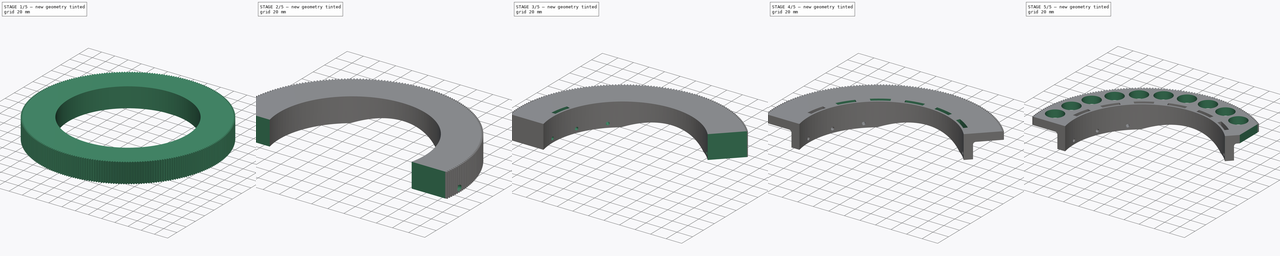
[diagram: build sequence overview — one tinted view per stage of 5, left to right]
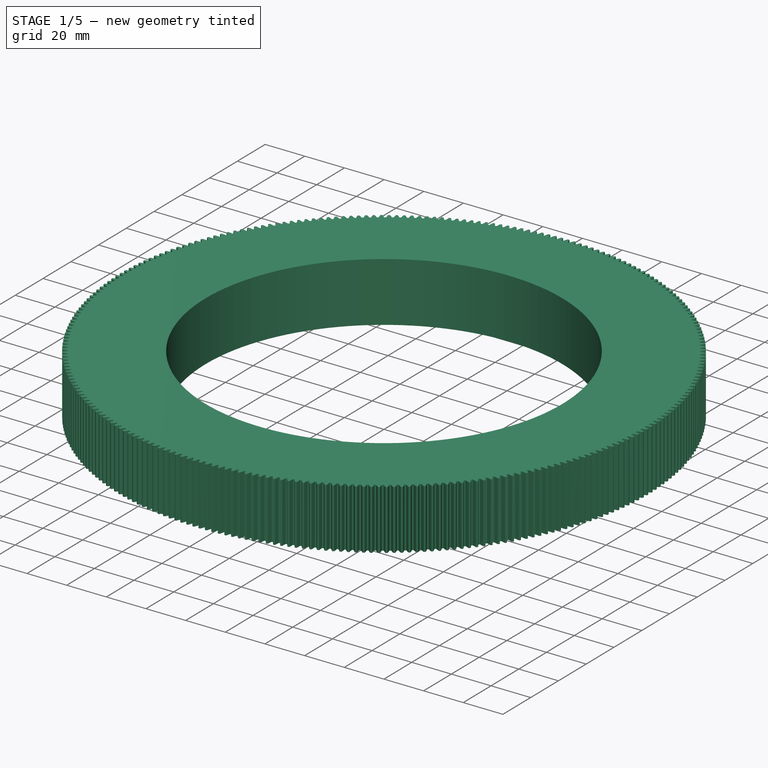
[diagram: stage 1 of 5 — iso view after this stage's code; geometry added in this stage tinted green]
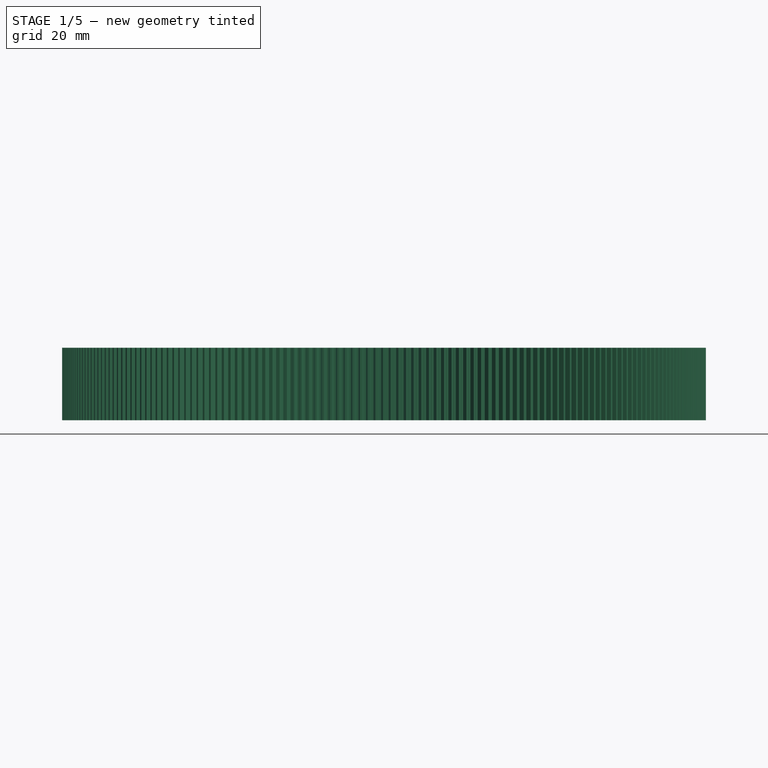
[diagram: stage 1 of 5 — front view after this stage's code; geometry added in this stage tinted green]
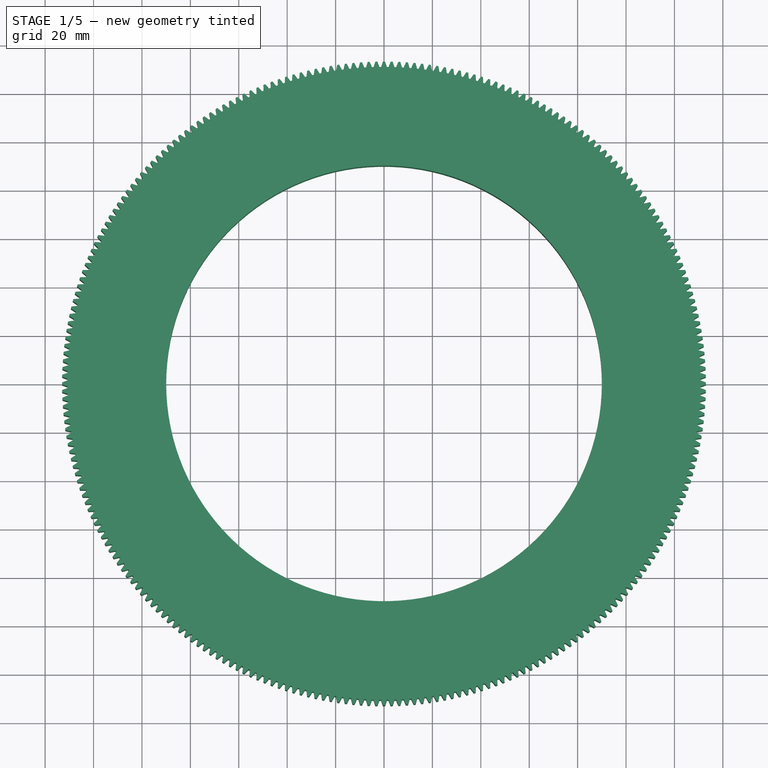
[diagram: stage 1 of 5 — top view after this stage's code; geometry added in this stage tinted green]
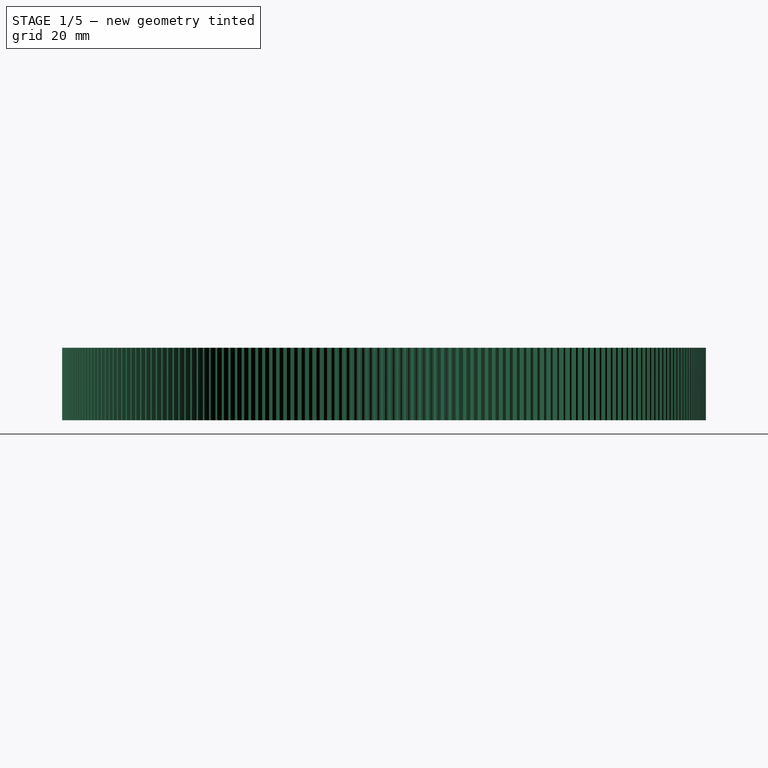
[diagram: stage 1 of 5 — right view after this stage's code; geometry added in this stage tinted green]
FCSTD DOCUMENT  (FreeCAD 2020.10.16R22739 +2665 (Git))
Label: wieniec-rury-mod1high
License: All rights reserved
objects: Sketcher::SketchObject×9, PartDesign::Pocket×8, PartDesign::PolarPattern×3, Part::FeaturePython×1, PartDesign::FeatureBase×1, PartDesign::Plane×1, PartDesign::Groove×1, PartDesign::Mirrored×1, PartDesign::MultiTransform×1, PartDesign::Fillet×1, PartDesign::Body×1
note: 54 computed .brp shape members not serialized (recipe doc carries the construction recipe); baked Part::Feature solids carry a one-line shape summary decoded from their .brp

FEATURE [Part::FeaturePython] involutegear  # WARN: FeaturePython — macro-defined, semantics opaque (R4)
  backlash = 0
  beta = 0
  clearance = 0.25
  double_helix = false
  dw = 264
  head = 0
  height = 30
  module = 1
  numpoints = 6
  pressure_angle = 20
  properties_from_tool = true
  reversed_backlash = false
  shift = 0
  simple = false
  teeth = 264
  transverse_pitch = 3.14159
  undercut = false
FEATURE [PartDesign::FeatureBase] BaseFeature
  BaseFeature = -> involutegear
  NewSolid = false
  Suppress = false
FEATURE [Sketcher::SketchObject] Sketch
  MapMode = 5
  Placement = pos=(0,0,30) rot=(0,0,1;0rad)
  Support = -> [BaseFeature]
  sketch-geometry (1):
    g0: Circle CenterX=0 CenterY=0 CenterZ=0 NormalX=0 NormalY=0 NormalZ=1 AngleXU=0 Radius=90
  constraints (2):
    c: Coincident(g0,g-1)
    c: Diameter(g0) = 180
FEATURE [PartDesign::Pocket] Pocket
  BaseFeature = -> BaseFeature
  ClaimChildren = false
  Length = 5
  Length2 = 100
  NewSolid = false
  Profile = -> Sketch
  Suppress = false
  Type = 1
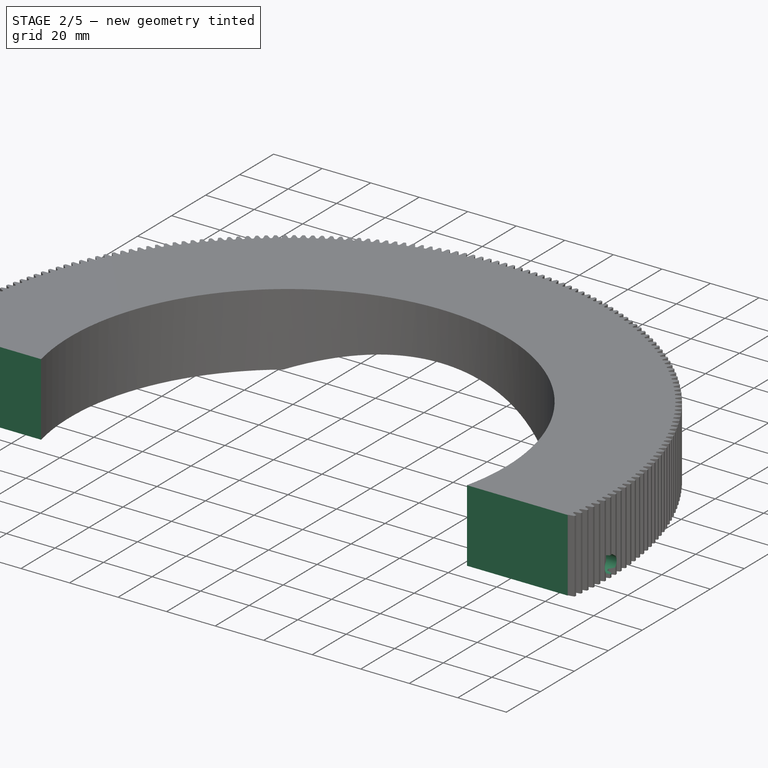
[diagram: stage 2 of 5 — iso view after this stage's code; geometry added in this stage tinted green]
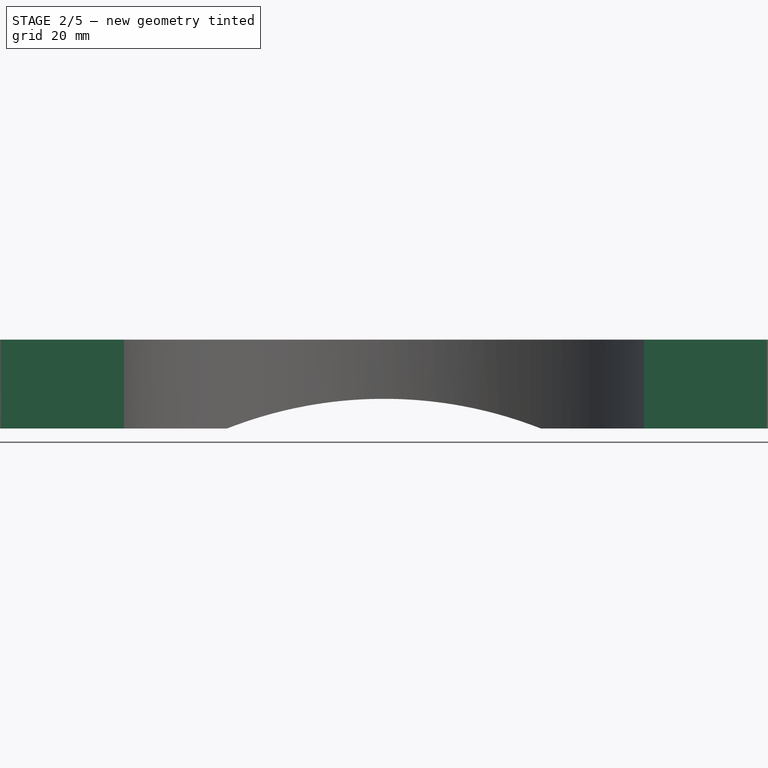
[diagram: stage 2 of 5 — front view after this stage's code; geometry added in this stage tinted green]
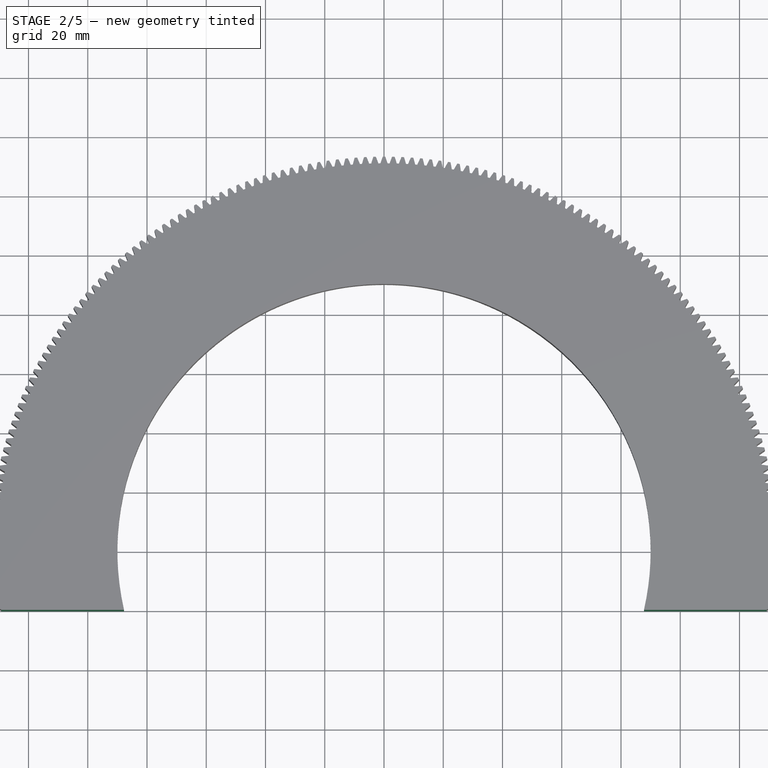
[diagram: stage 2 of 5 — top view after this stage's code; geometry added in this stage tinted green]
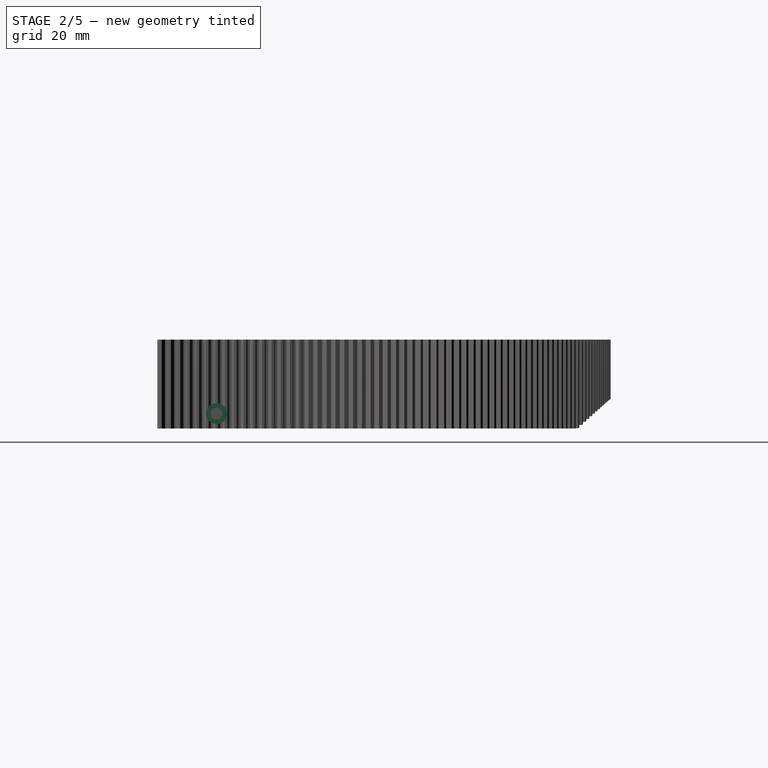
[diagram: stage 2 of 5 — right view after this stage's code; geometry added in this stage tinted green]
FEATURE [Sketcher::SketchObject] Sketch001
  MapMode = 5
  Placement = pos=(0,0,0) rot=(1,0,0;1.5708rad)
  Support = -> [XZ_Plane]
  sketch-geometry (2):
    g0: Circle CenterX=0 CenterY=-135 CenterZ=0 NormalX=0 NormalY=0 NormalZ=1 AngleXU=0 Radius=145
    g1: GeomPoint X=0 Y=10 Z=0
  constraints (5):
    c: PointOnObject(g0,g-2)
    c: PointOnObject(g1,g0)
    c: PointOnObject(g1,g-2)
    c: DistanceY(g-1,g1) = 10
    c: Diameter(g0) = 290
FEATURE [PartDesign::Pocket] Pocket001
  BaseFeature = -> Pocket
  ClaimChildren = false
  Length = 5
  Length2 = 100
  Midplane = true
  NewSolid = false
  Profile = -> Sketch001
  Suppress = false
  Type = 1
FEATURE [Sketcher::SketchObject] Sketch002
  MapMode = 5
  Support = -> [XY_Plane]
  sketch-geometry (4):
    g0: LineSegment StartX=-150 StartY=-20 StartZ=0 EndX=150 EndY=-20 EndZ=0
    g1: LineSegment StartX=150 StartY=-20 StartZ=0 EndX=150 EndY=-170 EndZ=0
    g2: LineSegment StartX=150 StartY=-170 StartZ=0 EndX=-150 EndY=-170 EndZ=0
    g3: LineSegment StartX=-150 StartY=-170 StartZ=0 EndX=-150 EndY=-20 EndZ=0
  constraints (11):
    c: Coincident(g0,g1)
    c: Coincident(g1,g2)
    c: Coincident(g2,g3)
    c: Coincident(g3,g0)
    c: Horizontal(g2)
    c: Vertical(g1)
    c: Vertical(g3)
    c: DistanceY(g0,g-1) = 20
    c: Symmetric(g0,g0,g-2)
    c: DistanceX(g2,g2) = 300
    c: DistanceY(g1,g1) = 150
FEATURE [PartDesign::Pocket] Pocket002
  BaseFeature = -> Pocket001
  ClaimChildren = false
  Length = 5
  Length2 = 100
  NewSolid = false
  Profile = -> Sketch002
  Reversed = true
  Suppress = false
  Type = 1
FEATURE [PartDesign::Plane] DatumPlane
  AttachmentOffset = pos=(0,0,5) rot=(0,0,1;0rad)
  Length = 265.999
  MapMode = 5
  Placement = pos=(0,0,5) rot=(0,0,1;0rad)
  ResizeMode = 0
  Support = -> [XY_Plane]
  Width = 222.97
FEATURE [Sketcher::SketchObject] Sketch003
  MapMode = 5
  Placement = pos=(0,0,5) rot=(0,0,1;0rad)
  Support = -> [DatumPlane]
  sketch-geometry (6):
    g0: LineSegment StartX=80 StartY=0 StartZ=0 EndX=80 EndY=2 EndZ=0
    g1: LineSegment StartX=80 StartY=2 StartZ=0 EndX=98 EndY=2 EndZ=0
    g2: LineSegment StartX=98 StartY=2 StartZ=0 EndX=98 EndY=3.5 EndZ=0
    g3: LineSegment StartX=98 StartY=3.5 StartZ=0 EndX=140 EndY=3.5 EndZ=0
    g4: LineSegment StartX=140 StartY=3.5 StartZ=0 EndX=140 EndY=0 EndZ=0
    g5: LineSegment StartX=140 StartY=0 StartZ=0 EndX=80 EndY=0 EndZ=0
  constraints (18):
    c: PointOnObject(g0,g-1)
    c: Vertical(g0)
    c: Coincident(g0,g1)
    c: Horizontal(g1)
    c: Coincident(g1,g2)
    c: Coincident(g2,g3)
    c: Horizontal(g3)
    c: Coincident(g3,g4)
    c: PointOnObject(g4,g-1)
    c: Vertical(g4)
    c: Coincident(g4,g5)
    c: Coincident(g5,g0)
    c: DistanceX(g0) = 80
    c: DistanceX(g1,g1) = 18
    c: Vertical(g2)
    c: DistanceY(g0,g0) = 2
    c: DistanceY(g4,g4) = 3.5
    c: DistanceX(g5,g5) = 60
FEATURE [PartDesign::Groove] Groove
  Angle = 360
  Axis = (1,0,0)
  Base = (0,0,5)
  BaseFeature = -> Pocket002
  ClaimChildren = false
  NewSolid = false
  Profile = -> Sketch003
  ReferenceAxis = -> Sketch003 [H_Axis]
  Reversed = true
  Suppress = false
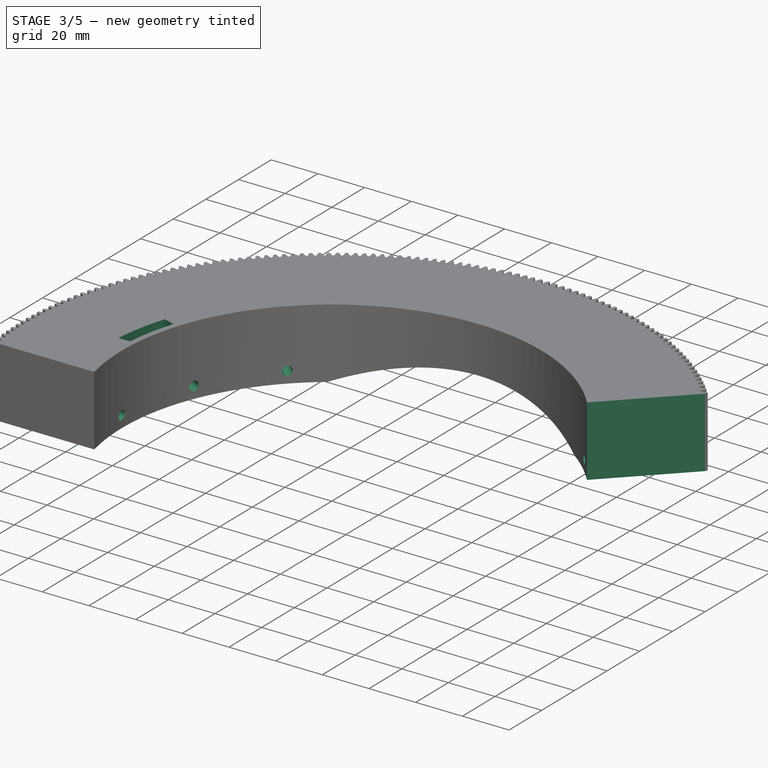
[diagram: stage 3 of 5 — iso view after this stage's code; geometry added in this stage tinted green]
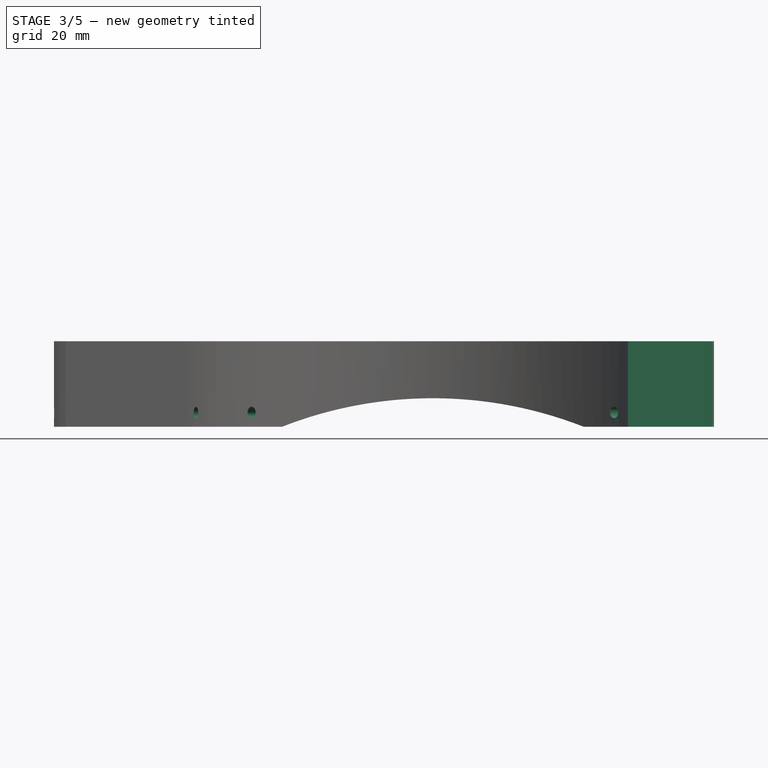
[diagram: stage 3 of 5 — front view after this stage's code; geometry added in this stage tinted green]
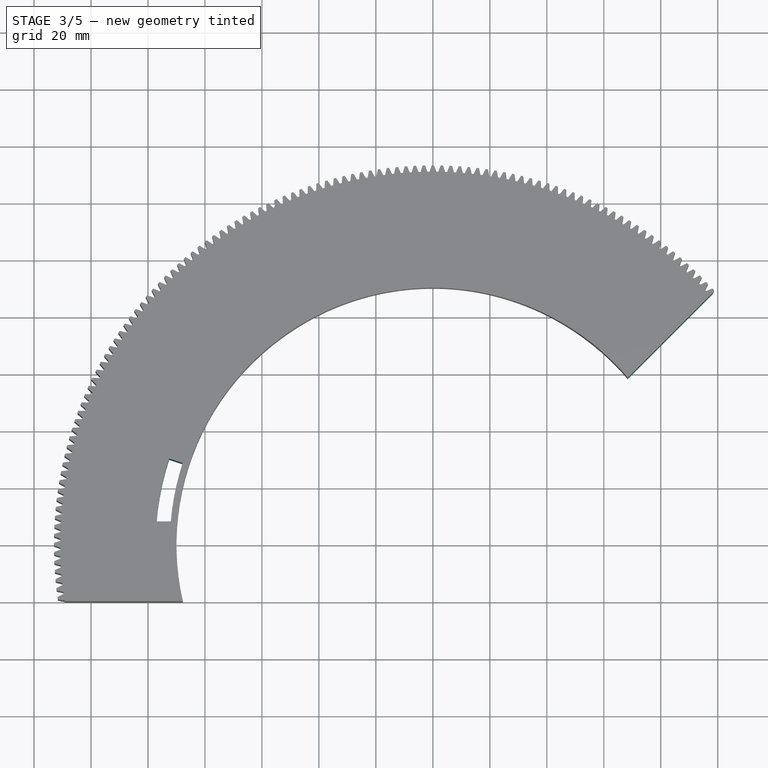
[diagram: stage 3 of 5 — top view after this stage's code; geometry added in this stage tinted green]
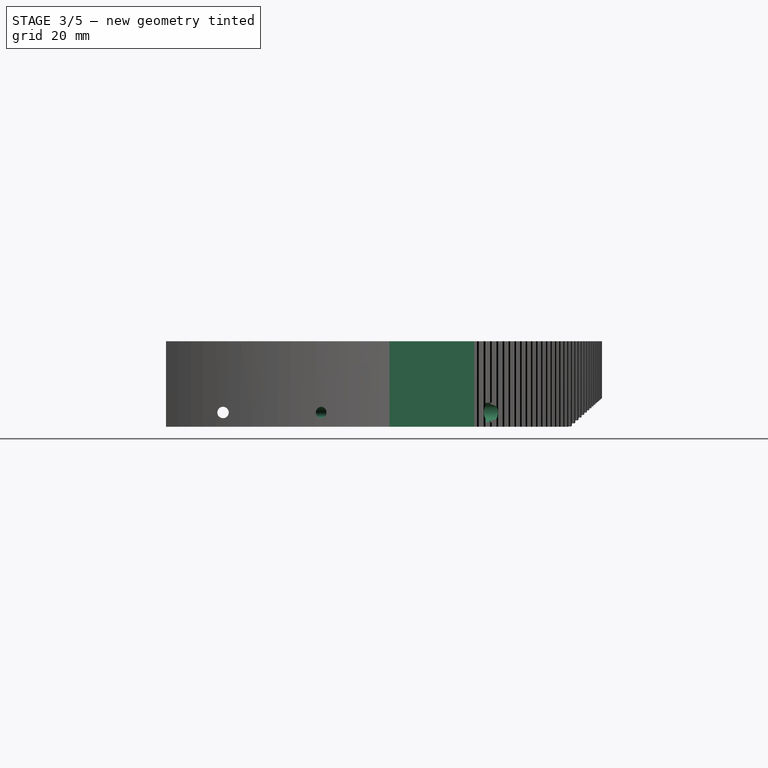
[diagram: stage 3 of 5 — right view after this stage's code; geometry added in this stage tinted green]
FEATURE [PartDesign::PolarPattern] PolarPattern
  Angle = 45
  Axis = -> Z_Axis
  CopyShape = false
  NewSolid = false
  Occurrences = 3
  SubTransform = true
  Suppress = false
FEATURE [PartDesign::Mirrored] Mirrored
  CopyShape = false
  MirrorPlane = -> YZ_Plane
  NewSolid = false
  SubTransform = true
  Suppress = false
FEATURE [PartDesign::MultiTransform] MultiTransform
  BaseFeature = -> Groove
  CopyShape = false
  NewSolid = false
  OriginalSubs = -> [Groove]
  Originals = -> [Groove]
  SubTransform = true
  Suppress = false
  Transformations = -> [PolarPattern,Mirrored]
FEATURE [Sketcher::SketchObject] Sketch004
  MapMode = 5
  Support = -> [XY_Plane]
  sketch-geometry (4):
    g0: LineSegment StartX=160 StartY=150 StartZ=0 EndX=10 EndY=0 EndZ=0
    g1: LineSegment StartX=10 StartY=0 StartZ=0 EndX=10 EndY=-30 EndZ=0
    g2: LineSegment StartX=10 StartY=-30 StartZ=0 EndX=160 EndY=-30 EndZ=0
    g3: LineSegment StartX=160 StartY=-30 StartZ=0 EndX=160 EndY=150 EndZ=0
  constraints (12):
    c: PointOnObject(g0,g-1)
    c: Coincident(g0,g1)
    c: Vertical(g1)
    c: Coincident(g1,g2)
    c: Horizontal(g2)
    c: Coincident(g2,g3)
    c: Coincident(g3,g0)
    c: Angle(g-1,g0) = 0.785398
    c: DistanceX(g0) = 10
    c: Vertical(g3)
    c: DistanceY(g2) = -30
    c: DistanceX(g2,g2) = 150
FEATURE [PartDesign::Pocket] Pocket003
  BaseFeature = -> MultiTransform
  ClaimChildren = false
  Length = 5
  Length2 = 100
  NewSolid = false
  Profile = -> Sketch004
  Reversed = true
  Suppress = false
  Type = 1
FEATURE [Sketcher::SketchObject] Sketch005
  MapMode = 5
  Support = -> [XY_Plane]
  sketch-geometry (5):
    g0: LineSegment StartX=-92 StartY=8 StartZ=0 EndX=-97 EndY=8 EndZ=0
    g1: ArcOfCircle CenterX=0 CenterY=0 CenterZ=0 NormalX=0 NormalY=0 NormalZ=1 AngleXU=0 Radius=92.3472 StartAngle=2.82743 EndAngle=3.05485
    g2: ArcOfCircle CenterX=0 CenterY=0 CenterZ=0 NormalX=0 NormalY=0 NormalZ=1 AngleXU=0 Radius=97.3293 StartAngle=2.82743 EndAngle=3.0593
    g3: LineSegment StartX=-92.5657 StartY=30.0764 StartZ=0 EndX=-87.8274 EndY=28.5368 EndZ=0
    g4: LineSegment [constr] StartX=-87.8274 StartY=28.5368 StartZ=0 EndX=0 EndY=0 EndZ=0
  constraints (14):
    c: Horizontal(g0)
    c: Coincident(g1,g-1)
    c: Coincident(g1,g0)
    c: Coincident(g2,g1)
    c: Coincident(g2,g0)
    c: Coincident(g3,g2)
    c: Coincident(g3,g1)
    c: DistanceX(g0) = -92
    c: DistanceY(g0) = 8
    c: DistanceX(g0,g0) = 5
    c: Angle(g3,g0) = 0.314159
    c: Coincident(g4,g1)
    c: Coincident(g4,g1)
    c: Parallel(g4,g3)
FEATURE [PartDesign::Pocket] Pocket004
  BaseFeature = -> Pocket003
  ClaimChildren = false
  Length = 5
  Length2 = 100
  NewSolid = false
  Profile = -> Sketch005
  Reversed = true
  Suppress = false
  Type = 1
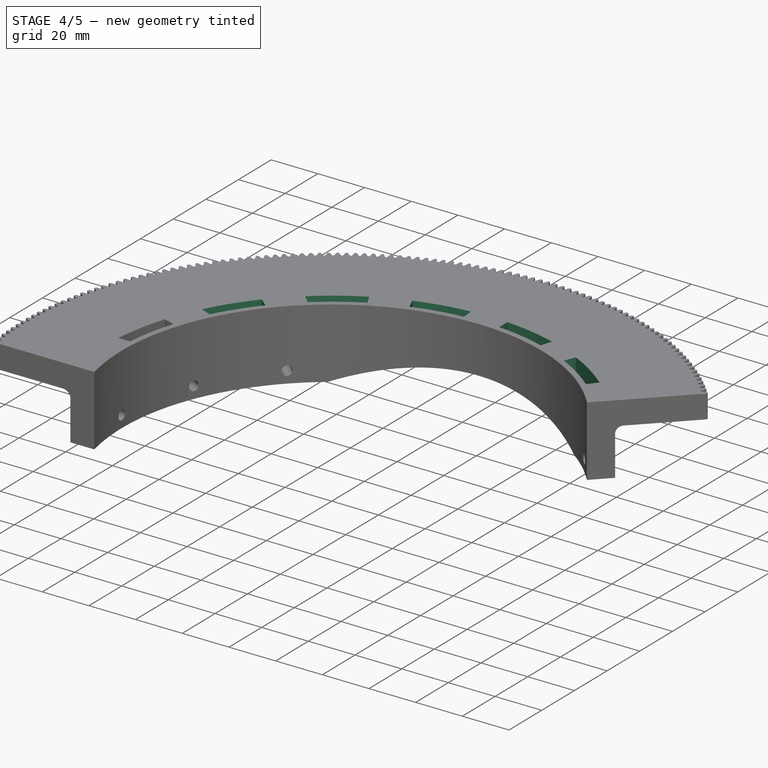
[diagram: stage 4 of 5 — iso view after this stage's code; geometry added in this stage tinted green]
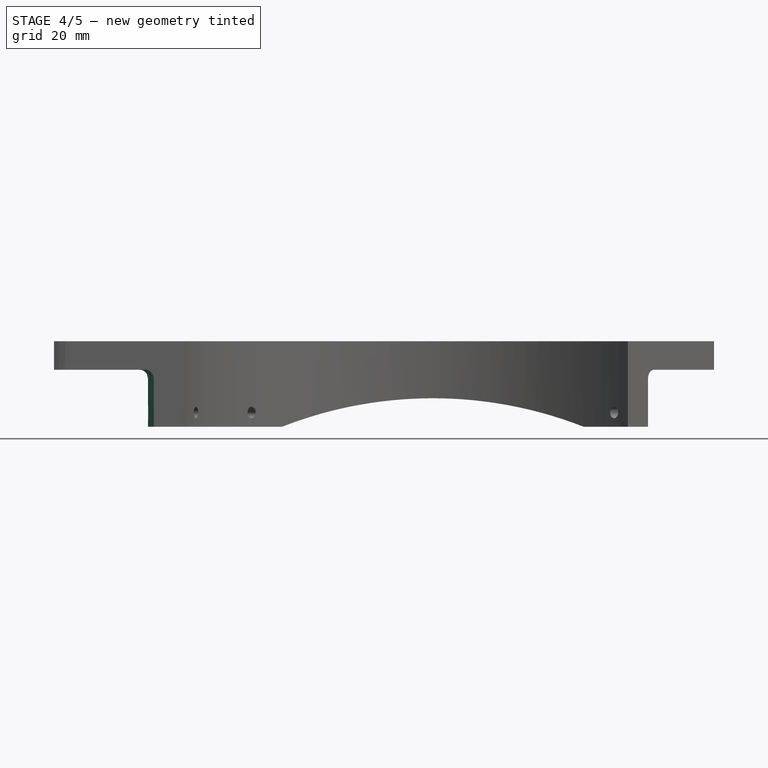
[diagram: stage 4 of 5 — front view after this stage's code; geometry added in this stage tinted green]
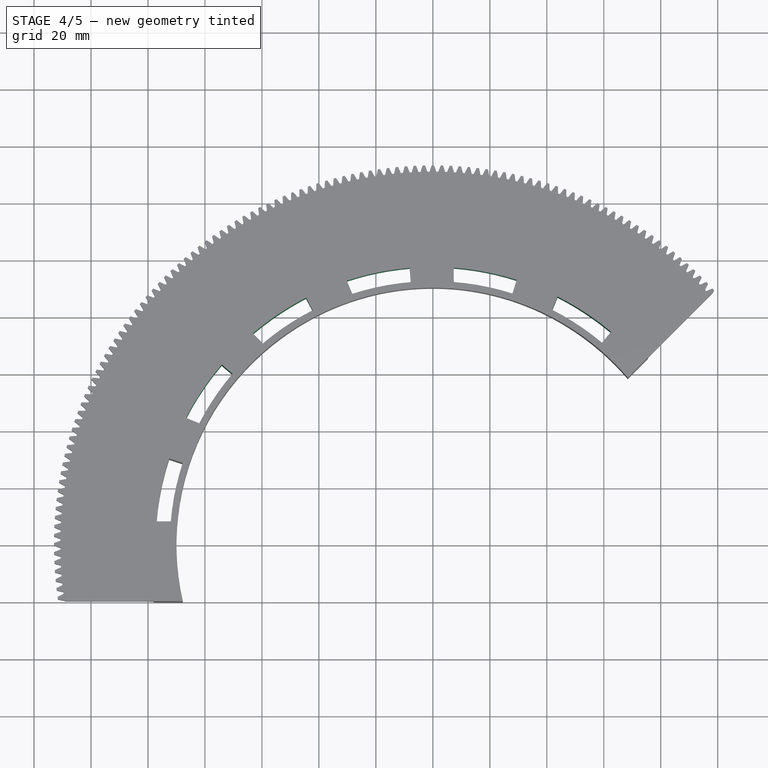
[diagram: stage 4 of 5 — top view after this stage's code; geometry added in this stage tinted green]
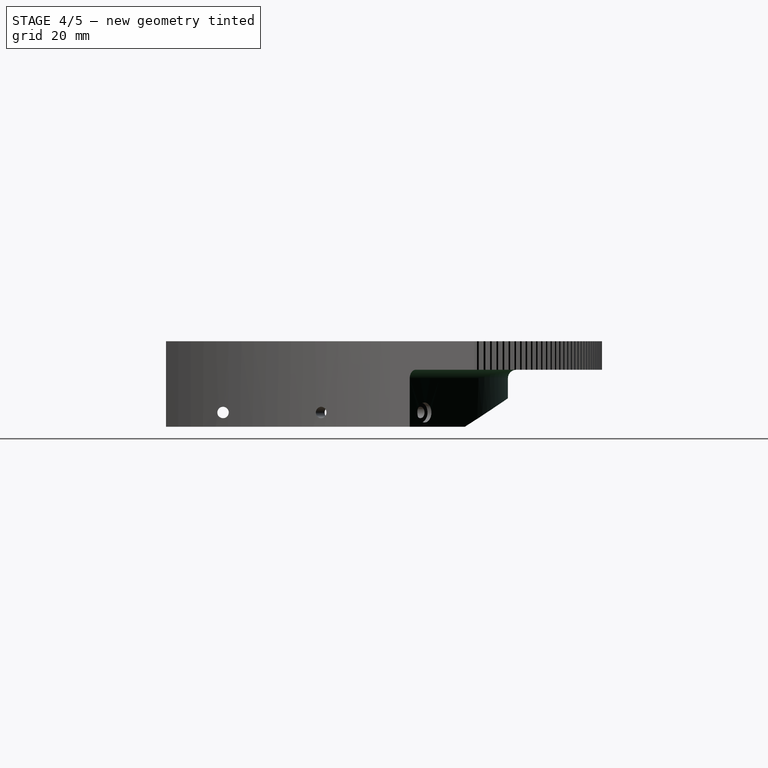
[diagram: stage 4 of 5 — right view after this stage's code; geometry added in this stage tinted green]
FEATURE [PartDesign::PolarPattern] PolarPattern001
  Angle = 112
  Axis = -> Z_Axis
  BaseFeature = -> Pocket004
  CopyShape = false
  NewSolid = false
  Occurrences = 6
  OriginalSubs = -> [Pocket004]
  Originals = -> [Pocket004]
  Reversed = true
  SubTransform = true
  Suppress = false
FEATURE [Sketcher::SketchObject] Sketch006
  MapMode = 5
  Support = -> [XY_Plane]
  sketch-geometry (2):
    g0: Circle CenterX=0 CenterY=0 CenterZ=0 NormalX=0 NormalY=0 NormalZ=1 AngleXU=0 Radius=100
    g1: Circle CenterX=0 CenterY=0 CenterZ=0 NormalX=0 NormalY=0 NormalZ=1 AngleXU=0 Radius=150
  constraints (4):
    c: Coincident(g0,g-1)
    c: Coincident(g1,g0)
    c: Diameter(g0) = 200
    c: Diameter(g1) = 300
FEATURE [PartDesign::Pocket] Pocket005
  BaseFeature = -> PolarPattern001
  ClaimChildren = false
  Length = 20
  Length2 = 100
  NewSolid = false
  Profile = -> Sketch006
  Reversed = true
  Suppress = false
  Type = 0
FEATURE [PartDesign::Fillet] Fillet
  Base = -> Pocket005 [Edge44]
  BaseFeature = -> Pocket005
  NewSolid = false
  Radius = 3
  SupportTransform = true
  Suppress = false
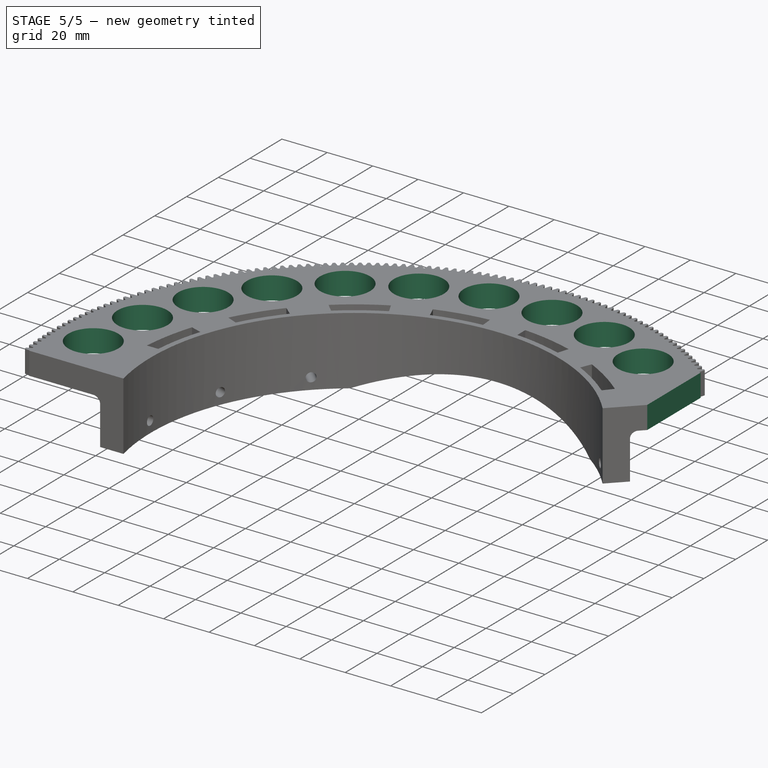
[diagram: stage 5 of 5 — iso view after this stage's code; geometry added in this stage tinted green]
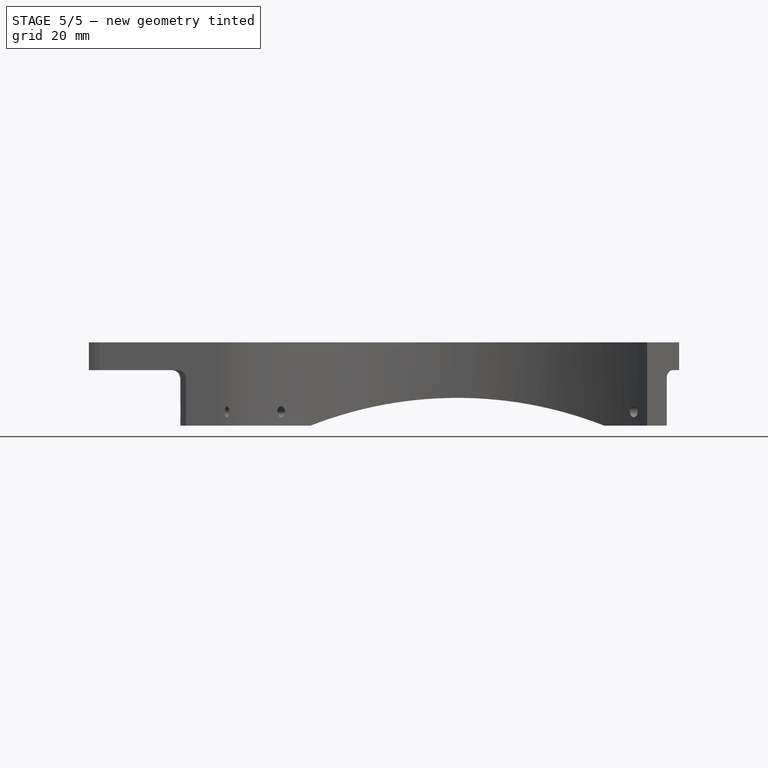
[diagram: stage 5 of 5 — front view after this stage's code; geometry added in this stage tinted green]
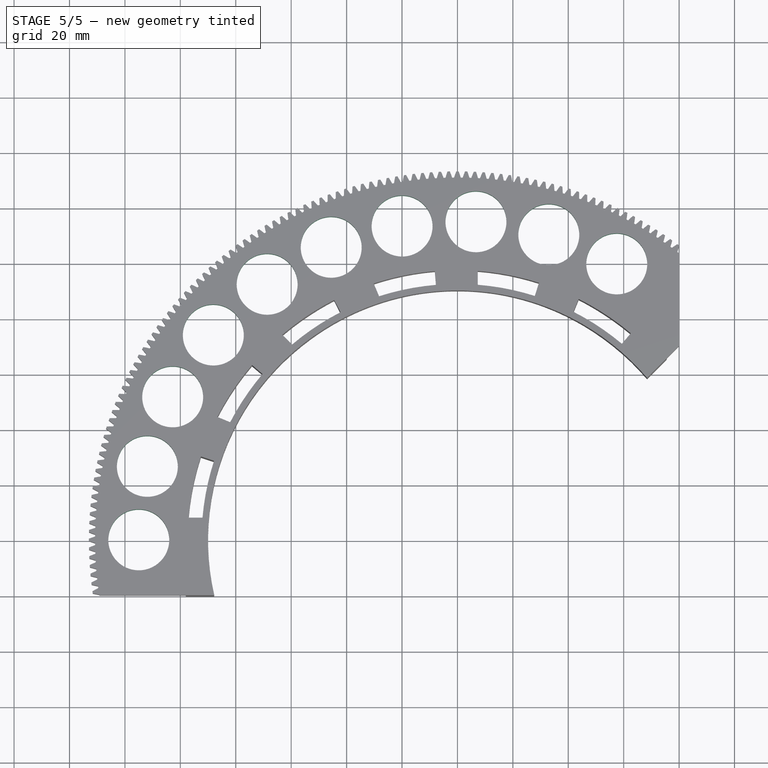
[diagram: stage 5 of 5 — top view after this stage's code; geometry added in this stage tinted green]
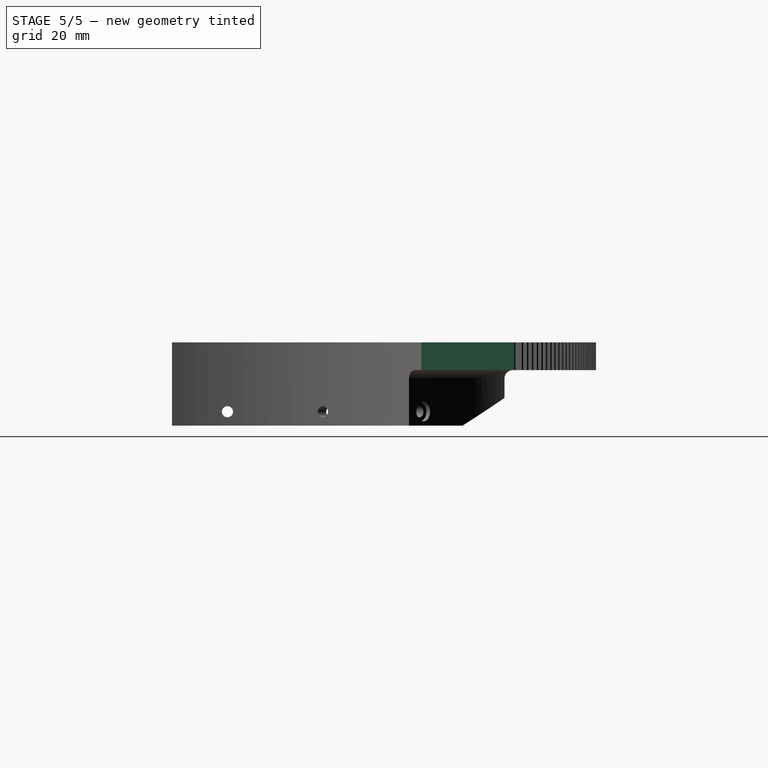
[diagram: stage 5 of 5 — right view after this stage's code; geometry added in this stage tinted green]
FEATURE [Sketcher::SketchObject] Sketch007
  MapMode = 5
  Support = -> [XY_Plane]
  sketch-geometry (1):
    g0: Circle CenterX=-115 CenterY=0 CenterZ=0 NormalX=0 NormalY=0 NormalZ=1 AngleXU=0 Radius=11
  constraints (3):
    c: PointOnObject(g0,g-1)
    c: DistanceX(g0) = -115
    c: Diameter(g0) = 22
FEATURE [PartDesign::Pocket] Pocket006
  BaseFeature = -> Fillet
  ClaimChildren = false
  Length = 5
  Length2 = 100
  NewSolid = false
  Profile = -> Sketch007
  Reversed = true
  Suppress = false
  Type = 1
FEATURE [PartDesign::PolarPattern] PolarPattern002
  Angle = 120
  Axis = -> Sketch007 [N_Axis]
  BaseFeature = -> Pocket006
  CopyShape = false
  NewSolid = false
  Occurrences = 10
  OriginalSubs = -> [Pocket006]
  Originals = -> [Pocket006]
  Reversed = true
  SubTransform = true
  Suppress = false
FEATURE [Sketcher::SketchObject] Sketch008
  MapMode = 5
  Support = -> [XY_Plane]
  sketch-geometry (4):
    g0: LineSegment StartX=80 StartY=120 StartZ=0 EndX=160 EndY=120 EndZ=0
    g1: LineSegment StartX=160 StartY=120 StartZ=0 EndX=160 EndY=0 EndZ=0
    g2: LineSegment StartX=160 StartY=0 StartZ=0 EndX=80 EndY=0 EndZ=0
    g3: LineSegment StartX=80 StartY=0 StartZ=0 EndX=80 EndY=120 EndZ=0
  constraints (12):
    c: Coincident(g0,g1)
    c: Coincident(g1,g2)
    c: Coincident(g2,g3)
    c: Coincident(g3,g0)
    c: Horizontal(g0)
    c: Horizontal(g2)
    c: Vertical(g1)
    c: Vertical(g3)
    c: PointOnObject(g1,g-1)
    c: DistanceX(g2) = 80
    c: DistanceY(g1,g1) = 120
    c: DistanceX(g2,g2) = 80
FEATURE [PartDesign::Pocket] Pocket007
  BaseFeature = -> PolarPattern002
  ClaimChildren = false
  Length = 5
  Length2 = 100
  NewSolid = false
  Profile = -> Sketch008
  Reversed = true
  Suppress = false
  Type = 1
FEATURE [PartDesign::Body] Body  label="wieniec-rury"
  BaseFeature = -> involutegear
  ExportMode = 0
  Group = -> [BaseFeature,Sketch,Pocket,Sketch001,Pocket001,Sketch002,Pocket002,DatumPlane,Sketch003,Groove,MultiTransform,PolarPattern,Mirrored,Sketch004,Pocket003,Sketch005,Pocket004,PolarPattern001,Sketch006,Pocket005,Fillet,Sketch007,Pocket006,PolarPattern002,Sketch008,Pocket007]
  Origin = -> Origin
  Tip = -> Pocket007
  _ExportChildren = -> [BaseFeature,Pocket,Pocket001,Pocket002,DatumPlane,Groove,MultiTransform,Pocket003,Pocket004,PolarPattern001,Pocket005,Fillet,Pocket006,PolarPattern002,Pocket007]
  _GroupVersion = 1
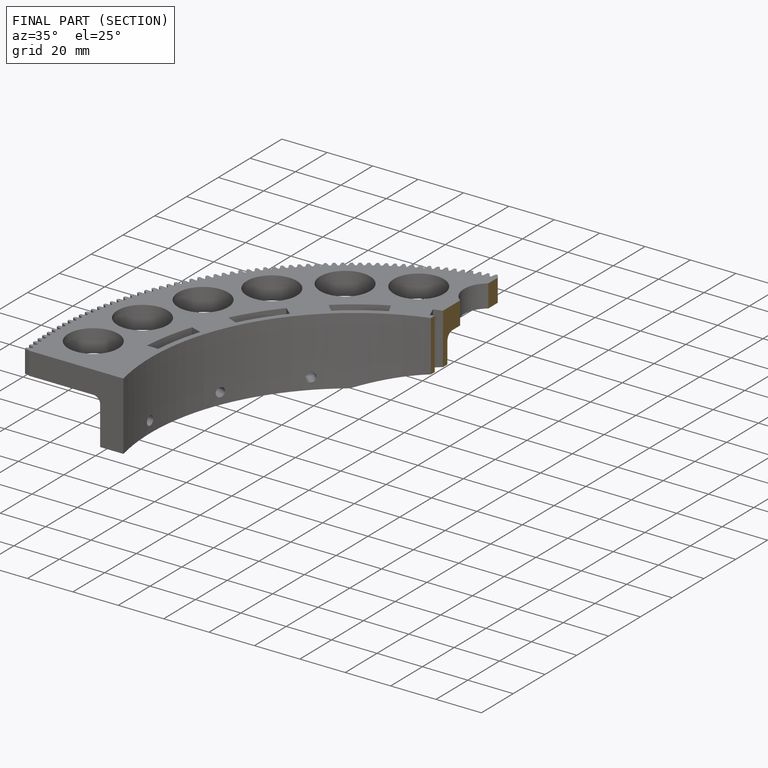
[diagram: finished part — half-section view (interior)]
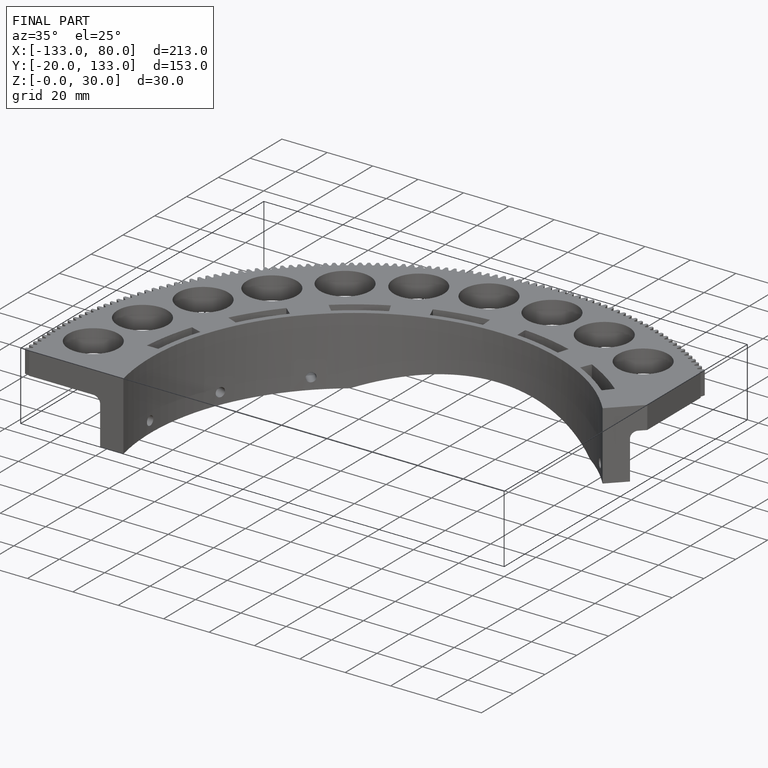
[diagram: finished part — iso view with bounding-box wireframe]
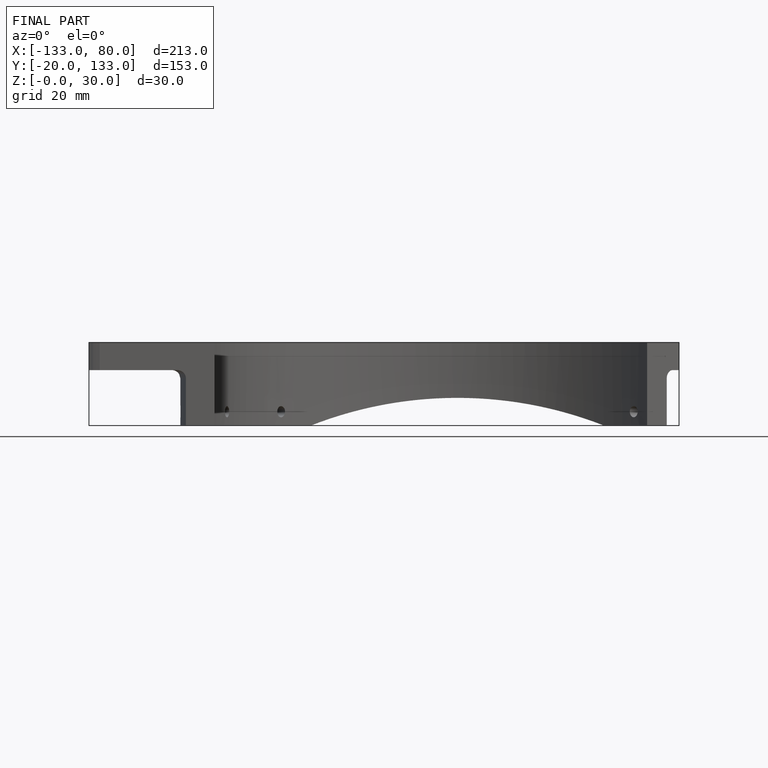
[diagram: finished part — front view with bounding-box wireframe]
